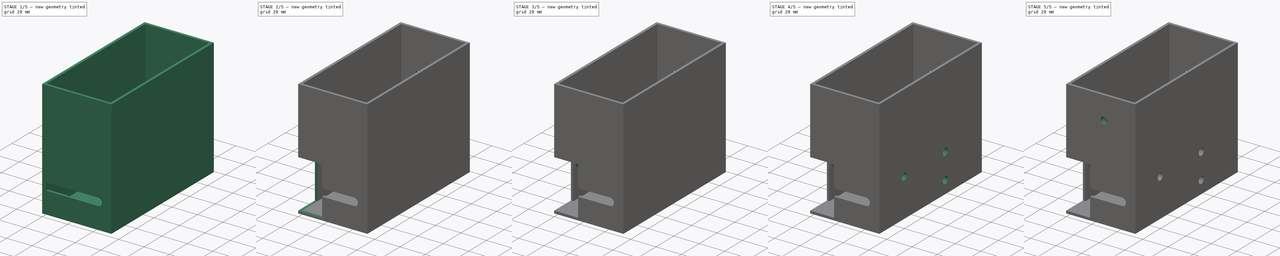
[diagram: build sequence overview — one tinted view per stage of 5, left to right]
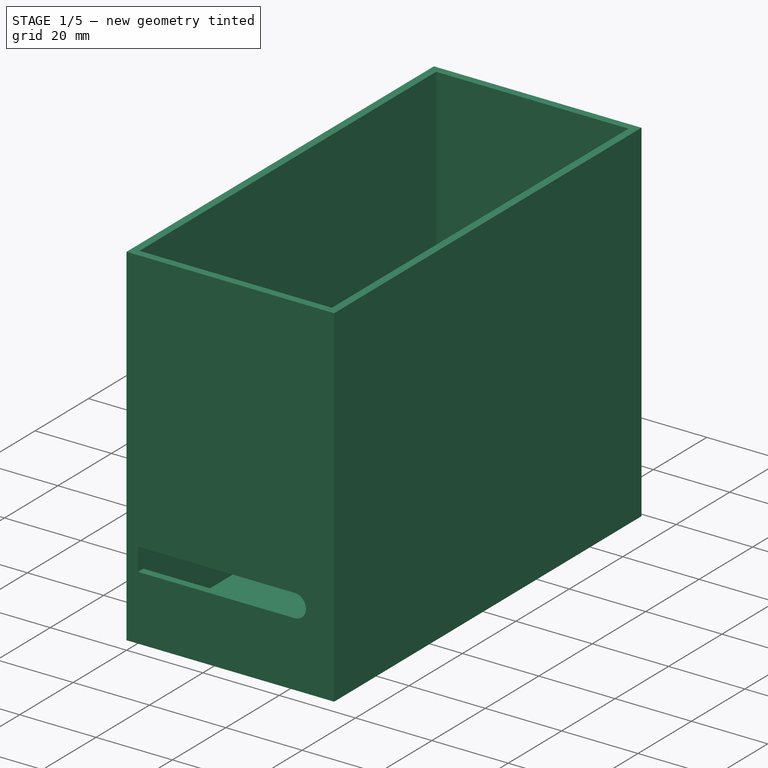
[diagram: stage 1 of 5 — iso view after this stage's code; geometry added in this stage tinted green]
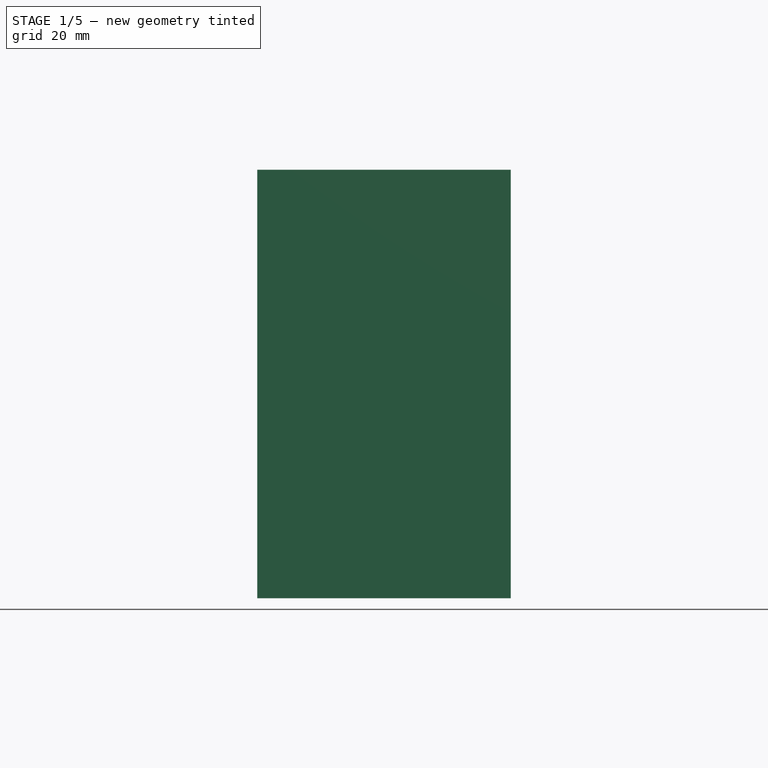
[diagram: stage 1 of 5 — front view after this stage's code; geometry added in this stage tinted green]
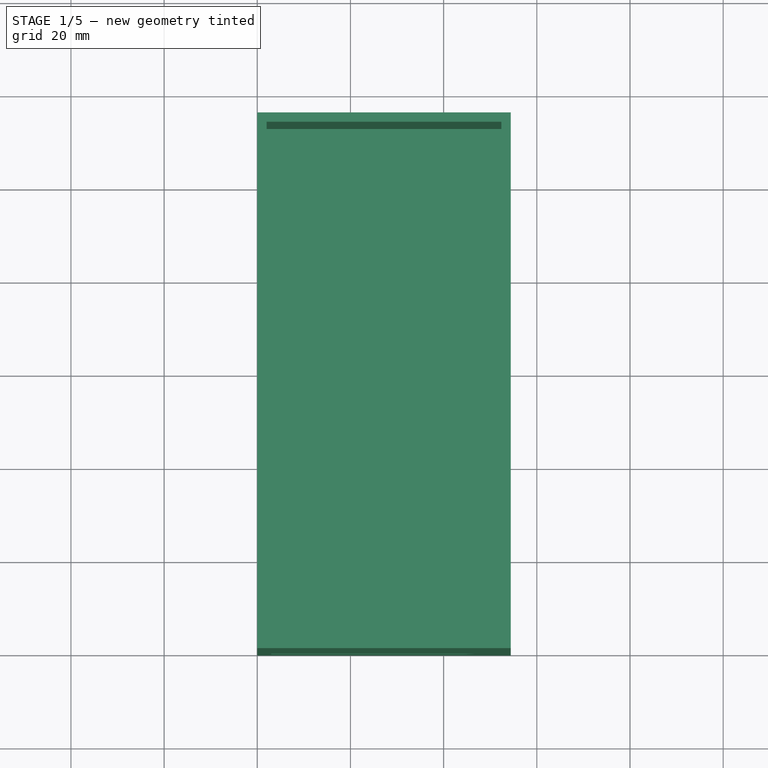
[diagram: stage 1 of 5 — top view after this stage's code; geometry added in this stage tinted green]
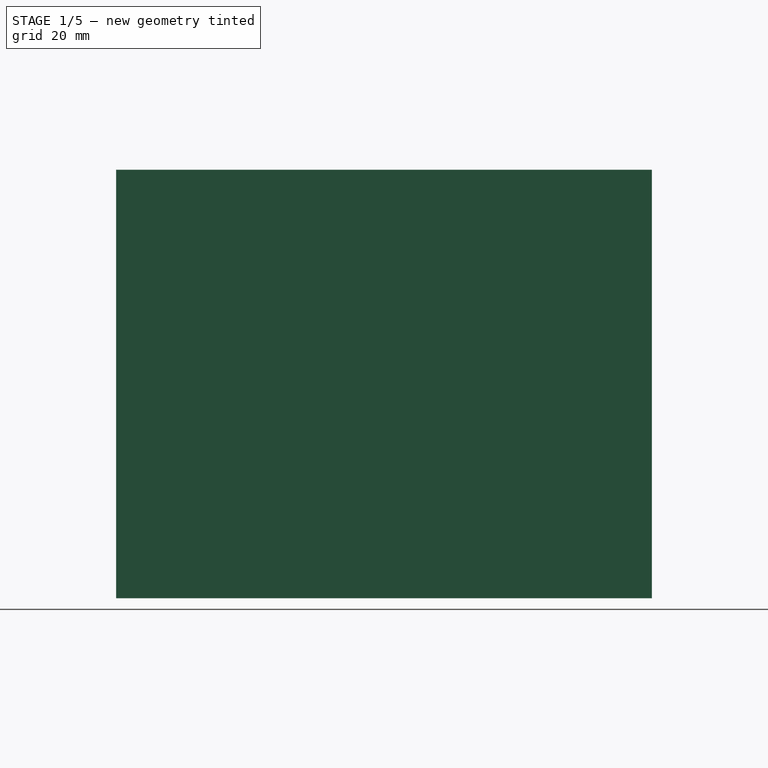
[diagram: stage 1 of 5 — right view after this stage's code; geometry added in this stage tinted green]
FCSTD DOCUMENT  (FreeCAD 0.19R24276 (Git))
Label: _Electr_PSU_Cover
License: All rights reserved
LicenseURL: http://en.wikipedia.org/wiki/All_rights_reserved
objects: Sketcher::SketchObject×14, PartDesign::Pocket×9, PartDesign::Pad×5, PartDesign::Chamfer×2, PartDesign::Body×1
note: 47 computed .brp shape members not serialized (recipe doc carries the construction recipe); baked Part::Feature solids carry a one-line shape summary decoded from their .brp

FEATURE [Sketcher::SketchObject] Sketch
  FullyConstrained = true
  MapMode = 5
  Support = -> [XY_Plane029]
  sketch-geometry (8):
    g0: LineSegment StartX=0 StartY=0 StartZ=0 EndX=54.4 EndY=0 EndZ=0
    g1: LineSegment StartX=54.4 StartY=0 StartZ=0 EndX=54.4 EndY=115 EndZ=0
    g2: LineSegment StartX=54.4 StartY=115 StartZ=0 EndX=0 EndY=115 EndZ=0
    g3: LineSegment StartX=0 StartY=115 StartZ=0 EndX=0 EndY=0 EndZ=0
    g4: LineSegment StartX=2.05 StartY=112.05 StartZ=0 EndX=52.35 EndY=112.05 EndZ=0
    g5: LineSegment StartX=52.35 StartY=112.05 StartZ=0 EndX=52.35 EndY=2.05 EndZ=0
    g6: LineSegment StartX=52.35 StartY=2.05 StartZ=0 EndX=2.05 EndY=2.05 EndZ=0
    g7: LineSegment StartX=2.05 StartY=2.05 StartZ=0 EndX=2.05 EndY=112.05 EndZ=0
  constraints (23):
    c: Coincident(g0,g1)
    c: Coincident(g1,g2)
    c: Coincident(g2,g3)
    c: Coincident(g3,g0)
    c: Horizontal(g0)
    c: Horizontal(g2)
    c: Vertical(g1)
    c: Vertical(g3)
    c: Coincident(g0,g-1)
    c: Coincident(g4,g5)
    c: Coincident(g5,g6)
    c: Coincident(g6,g7)
    c: Coincident(g7,g4)
    c: Horizontal(g4)
    c: Horizontal(g6)
    c: Vertical(g5)
    c: Vertical(g7)
    c: DistanceX(g0,g6) = 2.05
    c: DistanceY(g0,g6) = 2.05
    c: DistanceY(g7,g7) = 110
    c: DistanceX(g6,g6) = 50.3
    c: DistanceY(g1,g1) = 115
    c: DistanceX(g2,g2) = 54.4
FEATURE [PartDesign::Pad] Pad
  AllowMultiFace = false
  Direction = (1,1,1)
  Length = 92
  Length2 = 100
  Profile = -> Sketch
  Type = 0
FEATURE [Sketcher::SketchObject] Sketch001
  AttachmentOffset = pos=(0,0,92) rot=(0,0,1;0rad)
  ExternalGeometry = -> [Sketch]
  FullyConstrained = true
  MapMode = 5
  Placement = pos=(0,0,92) rot=(0,0,1;0rad)
  Support = -> [XY_Plane029]
  expr: .AttachmentOffset.Base.z = Pad.Length
  expr: Constraints[9] = Constraints[8]
  expr: Constraints[10] = Constraints[8]
  expr: Constraints[11] = Constraints[8]
  sketch-geometry (4):
    g0: LineSegment StartX=2 StartY=113 StartZ=0 EndX=52.4 EndY=113 EndZ=0
    g1: LineSegment StartX=52.4 StartY=113 StartZ=0 EndX=52.4 EndY=2 EndZ=0
    g2: LineSegment StartX=52.4 StartY=2 StartZ=0 EndX=2 EndY=2 EndZ=0
    g3: LineSegment StartX=2 StartY=2 StartZ=0 EndX=2 EndY=113 EndZ=0
  constraints (12):
    c: Coincident(g0,g1)
    c: Coincident(g1,g2)
    c: Coincident(g2,g3)
    c: Coincident(g3,g0)
    c: Horizontal(g0)
    c: Horizontal(g2)
    c: Vertical(g1)
    c: Vertical(g3)
    c: DistanceX(g-1,g2) = 2
    c: DistanceY(g-1,g2) = 2
    c: DistanceY(g0,g-3) = 2
    c: DistanceX(g0,g-3) = 2
FEATURE [PartDesign::Pocket] Pocket
  AllowMultiFace = false
  BaseFeature = -> Pad
  Length = 90
  Length2 = 100
  Profile = -> Sketch001
  Type = 0
  expr: Length = Pad.Length - 2mm
FEATURE [Sketcher::SketchObject] Sketch002
  FullyConstrained = true
  MapMode = 5
  Placement = pos=(0,0,0) rot=(1,0,0;1.5708rad)
  Support = -> [XZ_Plane029]
  sketch-geometry (5):
    g0: LineSegment StartX=3 StartY=23 StartZ=0 EndX=44 EndY=23 EndZ=0
    g1: ArcOfCircle CenterX=44 CenterY=20 CenterZ=0 NormalX=0 NormalY=0 NormalZ=1 AngleXU=0 Radius=3 StartAngle=4.71239 EndAngle=7.85398
    g2: LineSegment StartX=44 StartY=17 StartZ=0 EndX=3 EndY=17 EndZ=0
    g3: LineSegment StartX=3 StartY=17 StartZ=0 EndX=3 EndY=23 EndZ=0
    g4: LineSegment StartX=3 StartY=20 StartZ=0 EndX=44 EndY=20 EndZ=0
  constraints (14):
    c: Horizontal(g0)
    c: Tangent(g0,g1) = 1.5708
    c: Tangent(g1,g2) = 1.5708
    c: Coincident(g2,g3)
    c: Coincident(g3,g0)
    c: Vertical(g3)
    c: Horizontal(g2)
    c: PointOnObject(g4,g3)
    c: Coincident(g4,g1)
    c: Horizontal(g4)
    c: Radius(g1) = 3
    c: DistanceY(g-1,g4) = 20
    c: DistanceX(g-1,g2) = 3
    c: DistanceX(g-1,g1) = 44
FEATURE [PartDesign::Pocket] Pocket001
  AllowMultiFace = false
  BaseFeature = -> Pocket
  Length = 3
  Length2 = 100
  Profile = -> Sketch002
  Type = 0
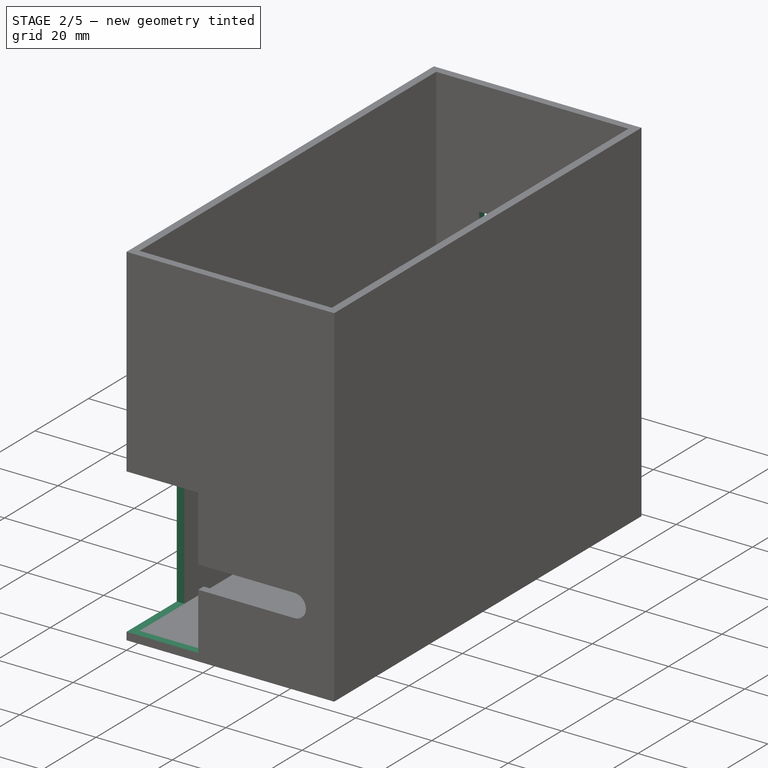
[diagram: stage 2 of 5 — iso view after this stage's code; geometry added in this stage tinted green]
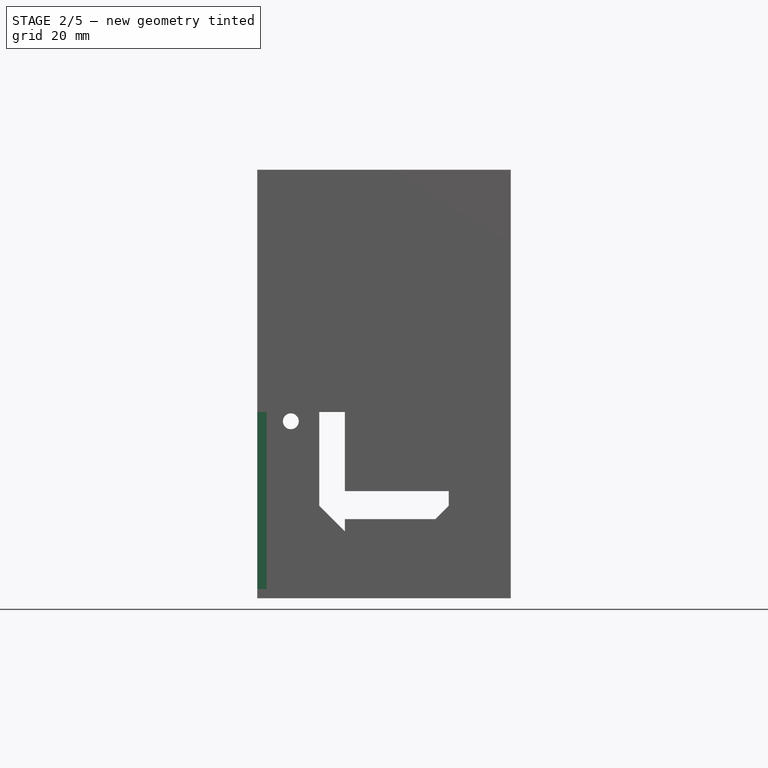
[diagram: stage 2 of 5 — front view after this stage's code; geometry added in this stage tinted green]
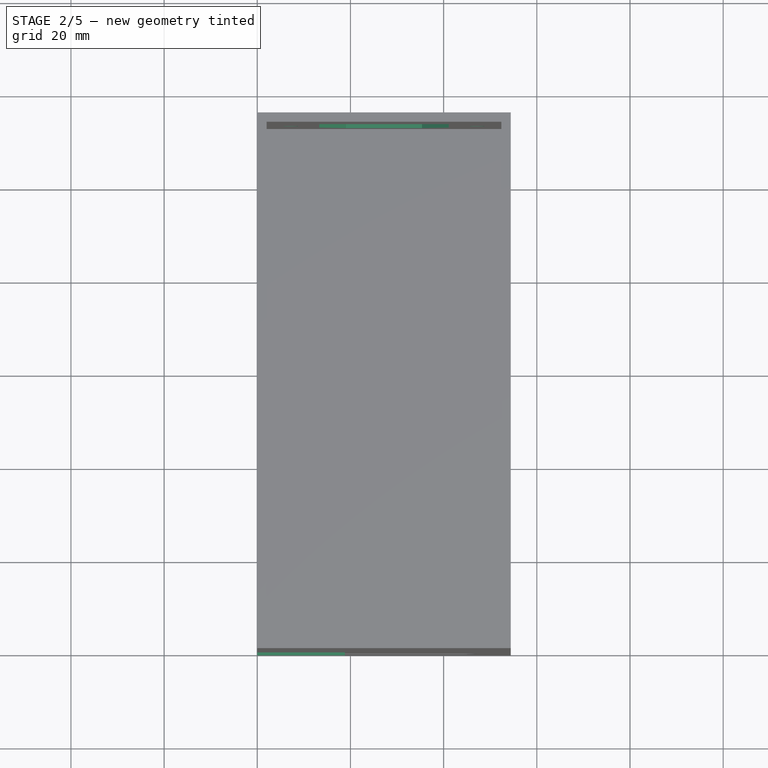
[diagram: stage 2 of 5 — top view after this stage's code; geometry added in this stage tinted green]
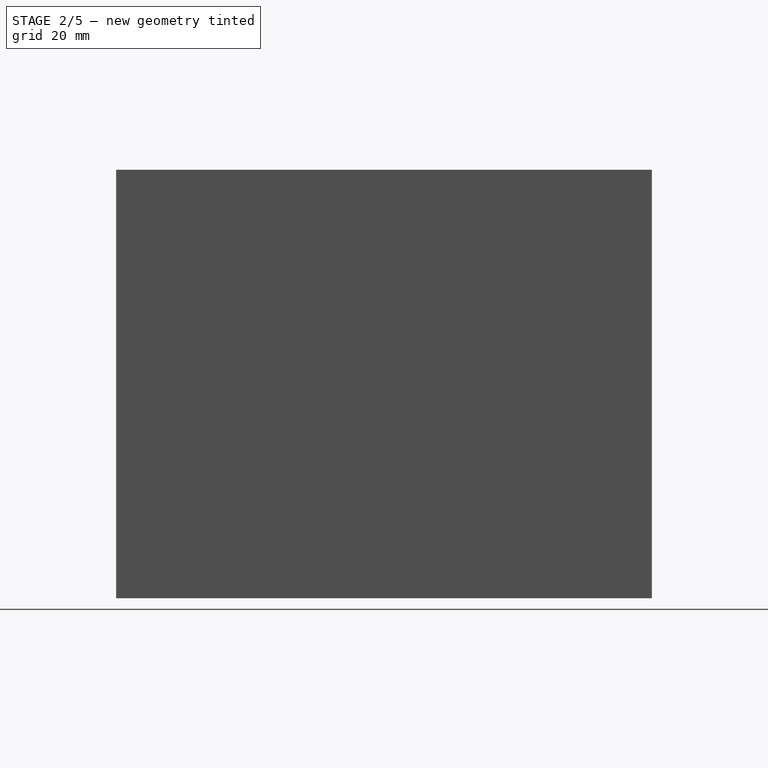
[diagram: stage 2 of 5 — right view after this stage's code; geometry added in this stage tinted green]
FEATURE [Sketcher::SketchObject] Sketch003
  AttachmentOffset = pos=(0,0,-115) rot=(0,0,1;0rad)
  FullyConstrained = true
  MapMode = 5
  Placement = pos=(0,115,2.55e-14) rot=(1,0,0;1.5708rad)
  Support = -> [XZ_Plane029]
  expr: Constraints[21] = Sketch.Constraints[22] / 2
  expr: .AttachmentOffset.Base.z = -Sketch.Constraints[21]
  sketch-geometry (11):
    g0: LineSegment StartX=13.3 StartY=61.9 StartZ=0 EndX=41.1 EndY=61.9 EndZ=0
    g1: LineSegment StartX=41.1 StartY=61.9 StartZ=0 EndX=41.1 EndY=19.85 EndZ=0
    g2: LineSegment StartX=41.1 StartY=19.85 StartZ=0 EndX=35.35 EndY=14.1 EndZ=0
    g3: LineSegment StartX=35.35 StartY=14.1 StartZ=0 EndX=19.05 EndY=14.1 EndZ=0
    g4: LineSegment StartX=19.05 StartY=14.1 StartZ=0 EndX=13.3 EndY=19.85 EndZ=0
    g5: LineSegment StartX=13.3 StartY=19.85 StartZ=0 EndX=13.3 EndY=61.9 EndZ=0
    g6: Circle CenterX=7.2 CenterY=38 CenterZ=0 NormalX=0 NormalY=0 NormalZ=1 AngleXU=0 Radius=1.7
    g7: Circle CenterX=47.2 CenterY=38 CenterZ=0 NormalX=0 NormalY=0 NormalZ=1 AngleXU=0 Radius=1.7
    g8: LineSegment StartX=7.2 StartY=38 StartZ=0 EndX=47.2 EndY=38 EndZ=0
    g9: LineSegment StartX=27.2 StartY=61.9 StartZ=0 EndX=27.2 EndY=38 EndZ=0
    g10: LineSegment StartX=27.2 StartY=38 StartZ=0 EndX=27.2 EndY=14.1 EndZ=0
  constraints (30):
    c: Horizontal(g0)
    c: Coincident(g0,g1)
    c: Vertical(g1)
    c: Coincident(g1,g2)
    c: Coincident(g2,g3)
    c: Coincident(g3,g4)
    c: Coincident(g4,g5)
    c: Coincident(g5,g0)
    c: Vertical(g5)
    c: Equal(g1,g5)
    c: Diameter(g6) = 3.4
    c: Equal(g6,g7)
    c: DistanceX(g6,g7) = 40
    c: DistanceX(g0,g0) = 27.8
    c: DistanceY(g-1,g6) = 38
    c: Coincident(g8,g6)
    c: Coincident(g8,g7)
    c: PointOnObject(g9,g8)
    c: Coincident(g10,g9)
    c: PointOnObject(g10,g3)
    c: Vertical(g10)
    c: DistanceX(g-1,g10) = 27.2
    c: DistanceY(g2,g0) = 47.8
    c: Equal(g10,g9)
    c: Perpendicular(g4,g2)
    c: PointOnObject(g9,g0)
    c: Symmetric(g0,g0,g9)
    c: Symmetric(g2,g3,g10)
    c: Symmetric(g7,g6,g9)
    c: DistanceY(g2,g1) = 5.75
FEATURE [PartDesign::Pocket] Pocket002
  AllowMultiFace = false
  BaseFeature = -> Pocket001
  Length = 3
  Length2 = 100
  Profile = -> Sketch003
  Reversed = true
  Type = 0
FEATURE [Sketcher::SketchObject] Sketch004
  AttachmentOffset = pos=(0,0,21) rot=(0,0,1;0rad)
  FullyConstrained = true
  MapMode = 5
  Placement = pos=(0,0,21) rot=(0,0,1;0rad)
  Support = -> [XY_Plane029]
  sketch-geometry (5):
    g0: LineSegment StartX=0 StartY=0 StartZ=0 EndX=18.8 EndY=0 EndZ=0
    g1: LineSegment StartX=18.8 StartY=0 StartZ=0 EndX=18.8 EndY=2.4 EndZ=0
    g2: LineSegment StartX=18.8 StartY=2.4 StartZ=0 EndX=2.4 EndY=18.8 EndZ=0
    g3: LineSegment StartX=2.4 StartY=18.8 StartZ=0 EndX=0 EndY=18.8 EndZ=0
    g4: LineSegment StartX=0 StartY=18.8 StartZ=0 EndX=0 EndY=0 EndZ=0
  constraints (14):
    c: Coincident(g-1,g0)
    c: PointOnObject(g0,g-1)
    c: Coincident(g0,g1)
    c: Vertical(g1)
    c: Coincident(g1,g2)
    c: Coincident(g2,g3)
    c: Horizontal(g3)
    c: Coincident(g3,g4)
    c: Coincident(g4,g0)
    c: Vertical(g4)
    c: Equal(g1,g3)
    c: Equal(g0,g4)
    c: DistanceX(g0,g0) = 18.8
    c: DistanceY(g1,g1) = 2.4
FEATURE [PartDesign::Pocket] Pocket003
  AllowMultiFace = false
  BaseFeature = -> Pocket002
  Length = 37.98
  Length2 = 100
  Midplane = true
  Profile = -> Sketch004
  Type = 0
FEATURE [Sketcher::SketchObject] Sketch005
  FullyConstrained = true
  MapMode = 5
  Placement = pos=(0,0,0) rot=(0.57735,0.57735,0.57735;2.0944rad)
  Support = -> [YZ_Plane029]
  sketch-geometry (13):
    g0: LineSegment StartX=106 StartY=29.7574 StartZ=0 EndX=106 EndY=19 EndZ=0
    g1: LineSegment StartX=101 StartY=14 StartZ=0 EndX=93 EndY=14 EndZ=0
    g2: LineSegment StartX=88 StartY=19 StartZ=0 EndX=88 EndY=29.7574 EndZ=0
    g3: GeomPoint X=97 Y=20 Z=0
    g4: ArcOfCircle CenterX=93 CenterY=29.7574 CenterZ=0 NormalX=0 NormalY=0 NormalZ=1 AngleXU=0 Radius=5 StartAngle=2.35619 EndAngle=3.14159
    g5: ArcOfCircle CenterX=101 CenterY=29.7574 CenterZ=0 NormalX=0 NormalY=0 NormalZ=1 AngleXU=0 Radius=5 StartAngle=0 EndAngle=0.785398
    g6: ArcOfCircle CenterX=101 CenterY=19 CenterZ=0 NormalX=0 NormalY=0 NormalZ=1 AngleXU=0 Radius=5 StartAngle=4.71239 EndAngle=6.28319
    g7: ArcOfCircle CenterX=93 CenterY=19 CenterZ=0 NormalX=0 NormalY=0 NormalZ=1 AngleXU=0 Radius=5 StartAngle=3.14159 EndAngle=4.71239
    g8: LineSegment StartX=89.4645 StartY=33.2929 StartZ=0 EndX=95.5858 EndY=39.4142 EndZ=0
    g9: LineSegment StartX=98.4142 StartY=39.4142 StartZ=0 EndX=104.536 EndY=33.2929 EndZ=0
    g10: ArcOfCircle CenterX=97 CenterY=38 CenterZ=0 NormalX=0 NormalY=0 NormalZ=1 AngleXU=0 Radius=2 StartAngle=0.785398 EndAngle=2.35619
    g11: GeomPoint X=97 Y=40 Z=0
    g12: LineSegment StartX=97 StartY=40 StartZ=0 EndX=97 EndY=0 EndZ=0
  constraints (32):
    c: Horizontal(g1)
    c: Vertical(g0)
    c: Vertical(g2)
    c: DistanceY(g-1,g3) = 20
    c: DistanceX(g-1,g3) = 97
    c: Tangent(g2,g4) = 1.5708
    c: Tangent(g0,g5) = 1.5708
    c: Tangent(g0,g6) = 1.5708
    c: Tangent(g1,g6) = 1.5708
    c: Tangent(g1,g7) = 1.5708
    c: Tangent(g2,g7) = 1.5708
    c: DistanceX(g2,g0) = 18
    c: Tangent(g4,g8) = 1.5708
    c: Coincident(g9,g5)
    c: Tangent(g5,g9)
    c: Tangent(g8,g10) = 1.5708
    c: Tangent(g9,g10) = 1.5708
    c: Equal(g7,g6)
    c: Equal(g6,g5)
    c: DistanceY(g-1,g1) = 14
    c: Radius(g6) = 5
    c: Equal(g5,g4)
    c: Radius(g10) = 2
    c: Perpendicular(g8,g9)
    c: Equal(g2,g0)
    c: PointOnObject(g11,g10)
    c: Coincident(g12,g11)
    c: PointOnObject(g12,g-1)
    c: PointOnObject(g3,g12)
    c: PointOnObject(g10,g12)
    c: DistanceY(g12,g12) = 40
    c: Symmetric(g7,g6,g12)
FEATURE [PartDesign::Pocket] Pocket004
  AllowMultiFace = false
  BaseFeature = -> Pocket003
  Length = 2.02
  Length2 = 100
  Profile = -> Sketch005
  Reversed = true
  Type = 0
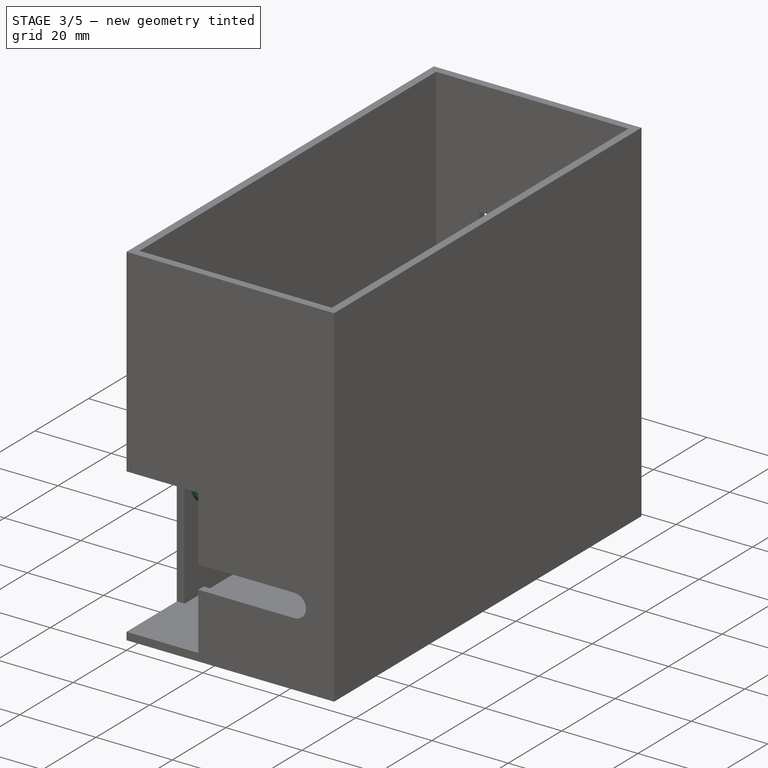
[diagram: stage 3 of 5 — iso view after this stage's code; geometry added in this stage tinted green]
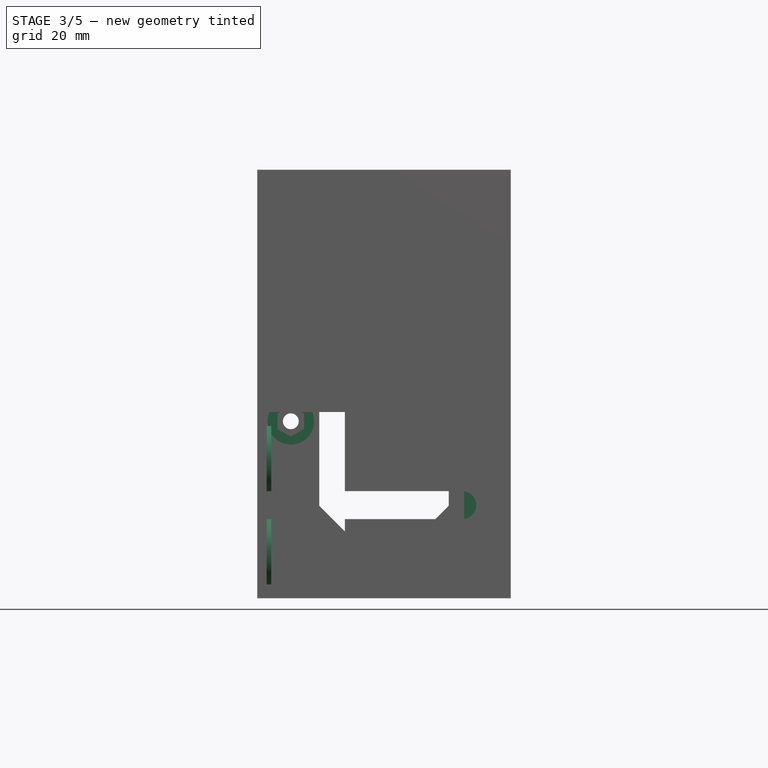
[diagram: stage 3 of 5 — front view after this stage's code; geometry added in this stage tinted green]
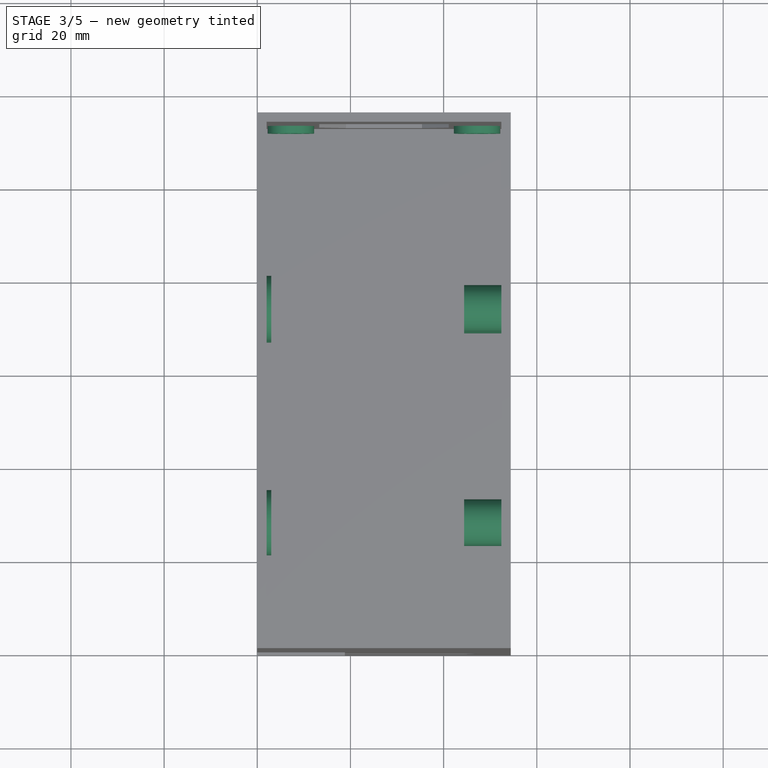
[diagram: stage 3 of 5 — top view after this stage's code; geometry added in this stage tinted green]
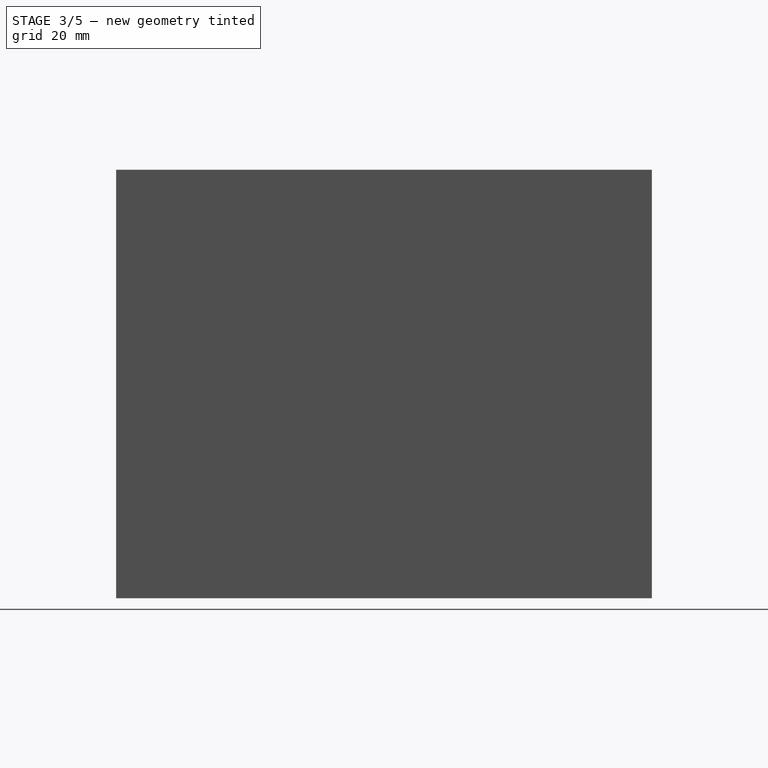
[diagram: stage 3 of 5 — right view after this stage's code; geometry added in this stage tinted green]
FEATURE [Sketcher::SketchObject] Sketch006
  AttachmentOffset = pos=(0,0,-113) rot=(0,0,1;0rad)
  ExternalGeometry = -> [Sketch003]
  FullyConstrained = true
  MapMode = 5
  Placement = pos=(0,113,2.51e-14) rot=(1,0,0;1.5708rad)
  Support = -> [XZ_Plane029]
  expr: .AttachmentOffset.Base.z = -Sketch.Constraints[21] + 2mm
  sketch-geometry (4):
    g0: Circle CenterX=7.2 CenterY=38 CenterZ=0 NormalX=0 NormalY=0 NormalZ=1 AngleXU=0 Radius=5
    g1: Circle CenterX=47.2 CenterY=38 CenterZ=0 NormalX=0 NormalY=0 NormalZ=1 AngleXU=0 Radius=5
    g2: Circle CenterX=7.2 CenterY=38 CenterZ=0 NormalX=0 NormalY=0 NormalZ=1 AngleXU=0 Radius=1.7
    g3: Circle CenterX=47.2 CenterY=38 CenterZ=0 NormalX=0 NormalY=0 NormalZ=1 AngleXU=0 Radius=1.7
  constraints (8):
    c: Coincident(g0,g-3)
    c: Coincident(g1,g-4)
    c: Equal(g0,g1)
    c: Diameter(g0) = 10
    c: Coincident(g2,g0)
    c: Coincident(g3,g1)
    c: Equal(g2,g-3)
    c: Equal(g3,g-4)
FEATURE [PartDesign::Pad] Pad001
  AllowMultiFace = false
  BaseFeature = -> Pocket004
  Direction = (1,1,1)
  Length = 1.6
  Length2 = 100
  Profile = -> Sketch006
  Type = 0
FEATURE [Sketcher::SketchObject] Sketch007
  AttachmentOffset = pos=(0,0,-111.4) rot=(0,0,1;0rad)
  ExternalGeometry = -> [Sketch003]
  FullyConstrained = true
  MapMode = 5
  Placement = pos=(0,111.4,2.47e-14) rot=(1,0,0;1.5708rad)
  Support = -> [XZ_Plane029]
  expr: .AttachmentOffset.Base.z = -Sketch.Constraints[21] + 2mm + Pad001.Length
  sketch-geometry (14):
    g0: LineSegment StartX=7.2 StartY=41.2909 StartZ=0 EndX=4.35 EndY=39.6454 EndZ=0
    g1: LineSegment StartX=4.35 StartY=39.6454 StartZ=0 EndX=4.35 EndY=36.3546 EndZ=0
    g2: LineSegment StartX=4.35 StartY=36.3546 StartZ=0 EndX=7.2 EndY=34.7091 EndZ=0
    g3: LineSegment StartX=7.2 StartY=34.7091 StartZ=0 EndX=10.05 EndY=36.3546 EndZ=0
    g4: LineSegment StartX=10.05 StartY=36.3546 StartZ=0 EndX=10.05 EndY=39.6454 EndZ=0
    g5: LineSegment StartX=10.05 StartY=39.6454 StartZ=0 EndX=7.2 EndY=41.2909 EndZ=0
    g6: Circle CenterX=7.2 CenterY=38 CenterZ=0 NormalX=0 NormalY=0 NormalZ=1 AngleXU=0 Radius=3.2909
    g7: LineSegment StartX=47.2 StartY=41.2909 StartZ=0 EndX=44.35 EndY=39.6454 EndZ=0
    g8: LineSegment StartX=44.35 StartY=39.6454 StartZ=0 EndX=44.35 EndY=36.3546 EndZ=0
    g9: LineSegment StartX=44.35 StartY=36.3546 StartZ=0 EndX=47.2 EndY=34.7091 EndZ=0
    g10: LineSegment StartX=47.2 StartY=34.7091 StartZ=0 EndX=50.05 EndY=36.3546 EndZ=0
    g11: LineSegment StartX=50.05 StartY=36.3546 StartZ=0 EndX=50.05 EndY=39.6454 EndZ=0
    g12: LineSegment StartX=50.05 StartY=39.6454 StartZ=0 EndX=47.2 EndY=41.2909 EndZ=0
    g13: Circle CenterX=47.2 CenterY=38 CenterZ=0 NormalX=0 NormalY=0 NormalZ=1 AngleXU=0 Radius=3.2909
  constraints (32):
    c: Coincident(g0,g1)
    c: Coincident(g1,g2)
    c: Coincident(g2,g3)
    c: Coincident(g3,g4)
    c: Coincident(g4,g5)
    c: Coincident(g5,g0)
    c: Equal(g0, g1-g5) x5
    c: PointOnObject(g0,g6)
    c: PointOnObject(g1,g6)
    c: PointOnObject(g2,g6)
    c: PointOnObject(g3,g6)
    c: PointOnObject(g4,g6)
    c: PointOnObject(g5,g6)
    c: Coincident(g6,g-3)
    c: Coincident(g7,g8)
    c: Coincident(g8,g9)
    c: Coincident(g9,g10)
    c: Coincident(g10,g11)
    c: Coincident(g11,g12)
    c: Coincident(g12,g7)
    c: Equal(g7, g8-g12) x5
    c: PointOnObject(g7,g13)
    c: PointOnObject(g8,g13)
    c: PointOnObject(g9,g13)
    c: PointOnObject(g10,g13)
    c: PointOnObject(g11,g13)
    c: PointOnObject(g12,g13)
    c: Coincident(g13,g-4)
    c: Vertical(g4)
    c: Vertical(g8)
    c: DistanceX(g0,g4) = 5.7
    c: Equal(g6,g13)
FEATURE [PartDesign::Pocket] Pocket005
  AllowMultiFace = false
  BaseFeature = -> Pad001
  Length = 1.8
  Length2 = 100
  Profile = -> Sketch007
  Type = 0
FEATURE [Sketcher::SketchObject] Sketch008
  AttachmentOffset = pos=(0,0,2) rot=(0,0,1;0rad)
  FullyConstrained = true
  MapMode = 5
  Placement = pos=(2,-4e-16,4e-16) rot=(0.57735,0.57735,0.57735;2.0944rad)
  Support = -> [YZ_Plane029]
  sketch-geometry (4):
    g0: LineSegment StartX=28 StartY=30 StartZ=0 EndX=74 EndY=30 EndZ=0
    g1: Circle CenterX=28 CenterY=30 CenterZ=0 NormalX=0 NormalY=0 NormalZ=1 AngleXU=0 Radius=7
    g2: Circle CenterX=74 CenterY=30 CenterZ=0 NormalX=0 NormalY=0 NormalZ=1 AngleXU=0 Radius=7
    g3: Circle CenterX=74 CenterY=10 CenterZ=0 NormalX=0 NormalY=0 NormalZ=1 AngleXU=0 Radius=7
  constraints (11):
    c: Horizontal(g0)
    c: DistanceY(g-1,g0) = 30
    c: DistanceX(g0,g0) = 46
    c: DistanceX(g-1,g0) = 28
    c: Coincident(g1,g0)
    c: Coincident(g2,g0)
    c: Equal(g1,g2)
    c: Diameter(g1) = 14
    c: DistanceY(g3,g2) = 20
    c: Vertical(g3,g2)
    c: Equal(g2,g3)
FEATURE [PartDesign::Pad] Pad002
  AllowMultiFace = false
  BaseFeature = -> Pocket005
  Direction = (1,1,1)
  Length = 1
  Length2 = 100
  Profile = -> Sketch008
  Type = 0
FEATURE [Sketcher::SketchObject] Sketch009
  AttachmentOffset = pos=(0,0,52.4) rot=(0,0,1;0rad)
  ExternalGeometry = -> [Sketch008]
  FullyConstrained = true
  MapMode = 5
  Placement = pos=(52.4,-1.16e-14,1.16e-14) rot=(0.57735,0.57735,0.57735;2.0944rad)
  Support = -> [YZ_Plane029]
  expr: .AttachmentOffset.Base.z = Sketch.Constraints[22] - 2mm
  sketch-geometry (26):
    g0: LineSegment StartX=28 StartY=30 StartZ=0 EndX=28 EndY=15.9289 EndZ=0
    g1: LineSegment StartX=74 StartY=30 StartZ=0 EndX=74 EndY=10 EndZ=0
    g2: LineSegment StartX=31.5355 StartY=26.4645 StartZ=0 EndX=29 EndY=23.9289 EndZ=0
    g3: LineSegment StartX=29 StartY=23.9289 StartZ=0 EndX=29 EndY=15.9289 EndZ=0
    g4: LineSegment StartX=29 StartY=15.9289 StartZ=0 EndX=27 EndY=15.9289 EndZ=0
    g5: LineSegment StartX=27 StartY=15.9289 StartZ=0 EndX=27 EndY=23.9289 EndZ=0
    g6: LineSegment StartX=27 StartY=23.9289 StartZ=0 EndX=24.4645 EndY=26.4645 EndZ=0
    g7: LineSegment StartX=77.5355 StartY=26.4645 StartZ=0 EndX=75 EndY=23.9289 EndZ=0
    g8: LineSegment StartX=75 StartY=23.9289 StartZ=0 EndX=75 EndY=16.0711 EndZ=0
    g9: LineSegment StartX=73 StartY=16.0711 StartZ=0 EndX=73 EndY=23.9289 EndZ=0
    g10: LineSegment StartX=73 StartY=23.9289 StartZ=0 EndX=70.4645 EndY=26.4645 EndZ=0
    g11: ArcOfCircle CenterX=28 CenterY=30 CenterZ=0 NormalX=0 NormalY=0 NormalZ=1 AngleXU=0 Radius=5 StartAngle=5.49779 EndAngle=10.2102
    g12: ArcOfCircle CenterX=74 CenterY=30 CenterZ=0 NormalX=0 NormalY=0 NormalZ=1 AngleXU=0 Radius=5 StartAngle=5.49779 EndAngle=10.2102
    g13: LineSegment StartX=24.4645 StartY=26.4645 StartZ=0 EndX=31.5355 EndY=26.4645 EndZ=0
    g14: LineSegment StartX=70.4645 StartY=26.4645 StartZ=0 EndX=77.5355 EndY=26.4645 EndZ=0
    g15: ArcOfCircle CenterX=74 CenterY=10 CenterZ=0 NormalX=0 NormalY=0 NormalZ=1 AngleXU=0 Radius=5 StartAngle=2.3562 EndAngle=3.92699
    g16: ArcOfCircle CenterX=74 CenterY=10 CenterZ=0 NormalX=0 NormalY=0 NormalZ=1 AngleXU=0 Radius=5 StartAngle=5.49778 EndAngle=7.06859
    g17: LineSegment StartX=70.4645 StartY=6.46448 StartZ=0 EndX=73 EndY=3.92893 EndZ=0
    g18: LineSegment StartX=77.5355 StartY=6.46445 StartZ=0 EndX=75 EndY=3.92893 EndZ=0
    g19: LineSegment StartX=70.4645 StartY=13.5355 StartZ=0 EndX=73 EndY=16.0711 EndZ=0
    g20: LineSegment StartX=77.5355 StartY=13.5355 StartZ=0 EndX=75 EndY=16.0711 EndZ=0
    g21: LineSegment StartX=73 StartY=16.0711 StartZ=0 EndX=75 EndY=16.0711 EndZ=0
    g22: LineSegment StartX=73 StartY=3.92893 StartZ=0 EndX=75 EndY=3.92893 EndZ=0
    g23: LineSegment StartX=73 StartY=3.92893 StartZ=0 EndX=73 EndY=1 EndZ=0
    g24: LineSegment StartX=73 StartY=1 StartZ=0 EndX=75 EndY=1 EndZ=0
    g25: LineSegment StartX=75 StartY=1 StartZ=0 EndX=75 EndY=3.92893 EndZ=0
  constraints (71):
    c: Vertical(g0)
    c: Coincident(g2,g3)
    c: Vertical(g3)
    c: Coincident(g3,g4)
    c: Coincident(g4,g5)
    c: Vertical(g5)
    c: Coincident(g5,g6)
    c: Coincident(g7,g8)
    c: Vertical(g8)
    c: Coincident(g9,g10)
    c: Vertical(g9)
    c: PointOnObject(g0,g4)
    c: Coincident(g11,g0)
    c: Coincident(g11,g6)
    c: Coincident(g11,g2)
    c: Coincident(g12,g1)
    c: Coincident(g12,g10)
    c: Coincident(g12,g7)
    c: Coincident(g13,g6)
    c: Coincident(g13,g2)
    c: Coincident(g14,g10)
    c: Coincident(g14,g7)
    c: Symmetric(g4,g3,g0)
    c: Symmetric(g9,g8,g1)
    c: Equal(g5,g3)
    c: Equal(g9,g8)
    c: Equal(g13,g14)
    c: Perpendicular(g6,g2)
    c: Diameter(g11) = 10
    c: Coincident(g-3,g11)
    c: Equal(g11,g12)
    c: Coincident(g12,g-4)
    c: DistanceX(g4,g4) = 2
    c: DistanceY(g5,g5) = 8
    c: Coincident(g15,g-5)
    c: Coincident(g16,g15)
    c: Coincident(g17,g15)
    c: Coincident(g18,g16)
    c: Coincident(g19,g15)
    c: Coincident(g20,g16)
    c: Coincident(g19,g9)
    c: Coincident(g20,g8)
    c: Coincident(g15,g1)
    c: Tangent(g20,g16)
    c: Tangent(g16,g18)
    c: Tangent(g17,g15)
    c: Tangent(g15,g19)
    c: Equal(g12,g16)
    c: Equal(g16,g15)
    c: Horizontal(g14)
    c: Horizontal(g13)
    c: Tangent(g2,g11)
    c: Coincident(g21,g9)
    c: Coincident(g21,g8)
    c: Equal(g4,g21)
    c: Perpendicular(g7,g10)
    c: Perpendicular(g19,g20)
    c: Coincident(g22,g17)
    c: Coincident(g22,g18)
    c: Horizontal(g22)
    c: Equal(g21,g22)
    c: Equal(g18,g17)
    c: Coincident(g17,g23)
    c: Vertical(g23)
    c: Coincident(g23,g24)
    c: Horizontal(g24)
    c: Coincident(g24,g25)
    c: Coincident(g25,g18)
    c: Vertical(g25)
    c: DistanceY(g-1,g24) = 1
    c: Perpendicular(g17,g18)
FEATURE [PartDesign::Pad] Pad003
  AllowMultiFace = false
  BaseFeature = -> Pad002
  Direction = (1,1,1)
  Length = 8
  Length2 = 100
  Profile = -> Sketch009
  Reversed = true
  Type = 0
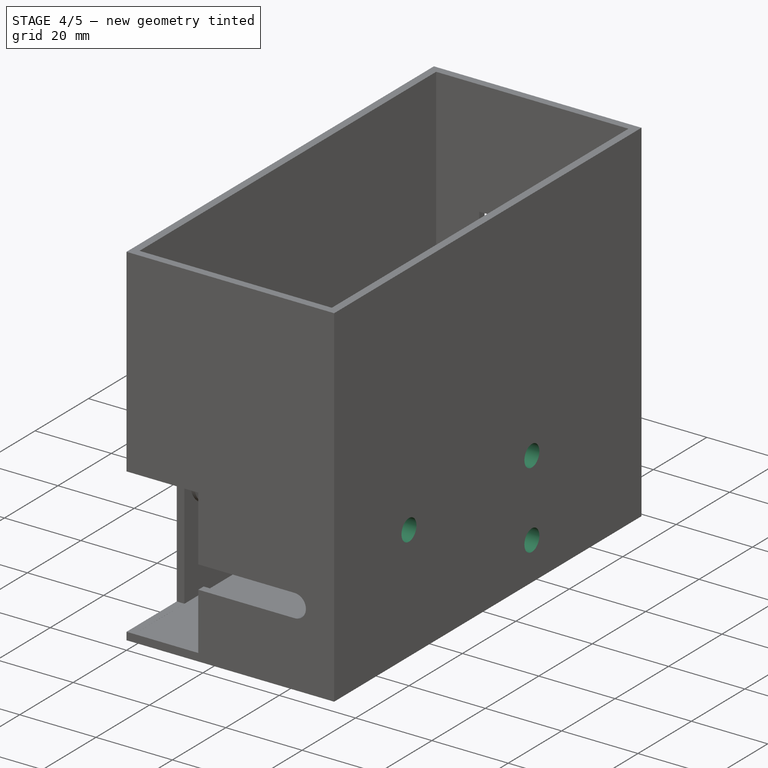
[diagram: stage 4 of 5 — iso view after this stage's code; geometry added in this stage tinted green]
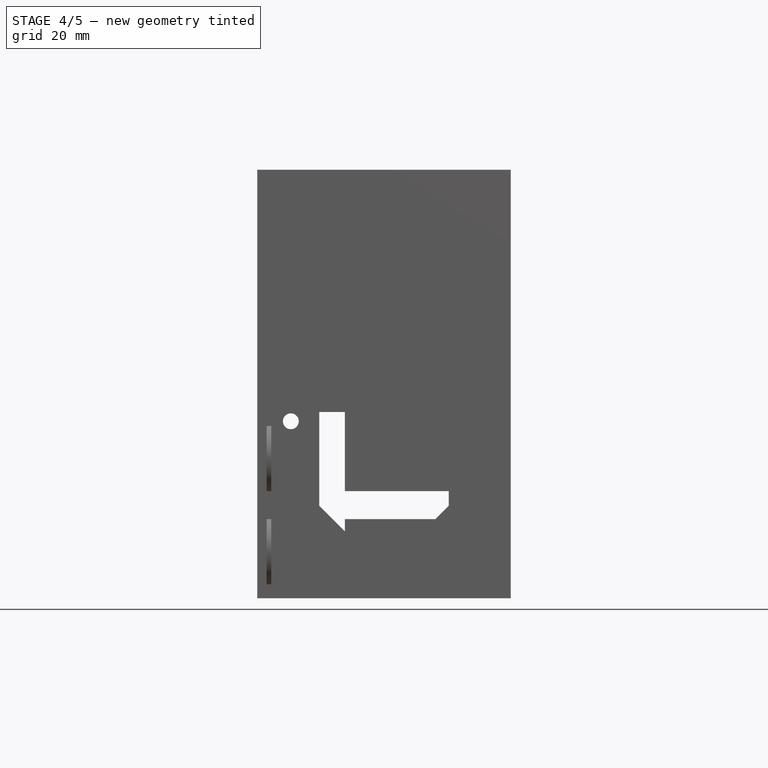
[diagram: stage 4 of 5 — front view after this stage's code; geometry added in this stage tinted green]
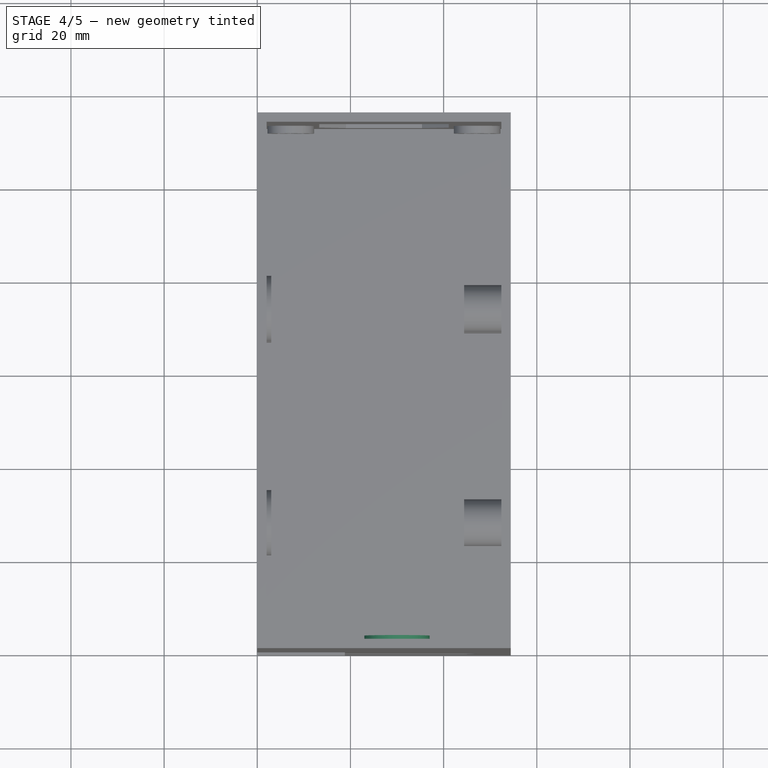
[diagram: stage 4 of 5 — top view after this stage's code; geometry added in this stage tinted green]
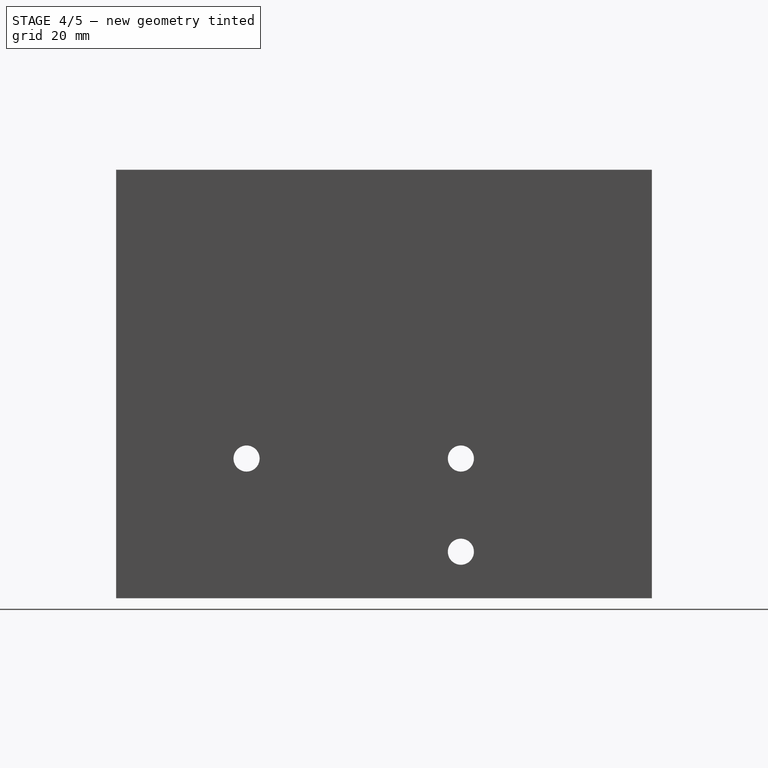
[diagram: stage 4 of 5 — right view after this stage's code; geometry added in this stage tinted green]
FEATURE [Sketcher::SketchObject] Sketch010
  AttachmentOffset = pos=(0,0,-28) rot=(0,0,1;0rad)
  ExternalGeometry = -> [Sketch009]
  FullyConstrained = true
  MapMode = 5
  Placement = pos=(0,28,6.2e-15) rot=(1,0,0;1.5708rad)
  Support = -> [XZ_Plane029]
  expr: Constraints[5] = Pad003.Length
  sketch-geometry (3):
    g0: LineSegment StartX=44.4 StartY=23.9289 StartZ=0 EndX=52.4 EndY=15.9289 EndZ=0
    g1: LineSegment StartX=44.4 StartY=23.9289 StartZ=0 EndX=44.4 EndY=15.9289 EndZ=0
    g2: LineSegment StartX=44.4 StartY=15.9289 StartZ=0 EndX=52.4 EndY=15.9289 EndZ=0
  constraints (8):
    c: Coincident(g0,g1)
    c: Vertical(g1)
    c: Coincident(g1,g2)
    c: Coincident(g2,g0)
    c: Horizontal(g2)
    c: DistanceX(g2,g2) = 8
    c: Horizontal(g-3,g0)
    c: Coincident(g0,g-4)
FEATURE [PartDesign::Pocket] Pocket006
  AllowMultiFace = false
  BaseFeature = -> Pad003
  Length = 3
  Length2 = 100
  Midplane = true
  Profile = -> Sketch010
  Reversed = true
  Type = 0
FEATURE [Sketcher::SketchObject] Sketch011
  ExternalGeometry = -> [Sketch008]
  FullyConstrained = true
  MapMode = 5
  Placement = pos=(0,0,0) rot=(0.57735,0.57735,0.57735;2.0944rad)
  Support = -> [YZ_Plane029]
  sketch-geometry (3):
    g0: Circle CenterX=28 CenterY=30 CenterZ=0 NormalX=0 NormalY=0 NormalZ=1 AngleXU=0 Radius=2.8
    g1: Circle CenterX=74 CenterY=30 CenterZ=0 NormalX=0 NormalY=0 NormalZ=1 AngleXU=0 Radius=2.8
    g2: Circle CenterX=74 CenterY=10 CenterZ=0 NormalX=0 NormalY=0 NormalZ=1 AngleXU=0 Radius=2.8
  constraints (6):
    c: Diameter(g0) = 5.6
    c: Equal(g0,g1)
    c: Equal(g1,g2)
    c: Coincident(g-3,g0)
    c: Coincident(g-4,g1)
    c: Coincident(g-5,g2)
FEATURE [PartDesign::Pocket] Pocket007
  AllowMultiFace = false
  BaseFeature = -> Pocket006
  Length = 5
  Length2 = 100
  Profile = -> Sketch011
  Reversed = true
  Type = 1
FEATURE [Sketcher::SketchObject] Sketch012
  AttachmentOffset = pos=(0,0,-2) rot=(0,0,1;0rad)
  FullyConstrained = true
  MapMode = 5
  Placement = pos=(0,2,4e-16) rot=(1,0,0;1.5708rad)
  Support = -> [XZ_Plane029]
  sketch-geometry (1):
    g0: Circle CenterX=30 CenterY=74 CenterZ=0 NormalX=0 NormalY=0 NormalZ=1 AngleXU=0 Radius=7
  constraints (3):
    c: Diameter(g0) = 14
    c: DistanceX(g-1,g0) = 30
    c: DistanceY(g-1,g0) = 74
FEATURE [PartDesign::Pad] Pad004
  AllowMultiFace = false
  BaseFeature = -> Pocket007
  Direction = (1,1,1)
  Length = 1
  Length2 = 100
  Profile = -> Sketch012
  Reversed = true
  Type = 0
  expr: Length = Pad002.Length
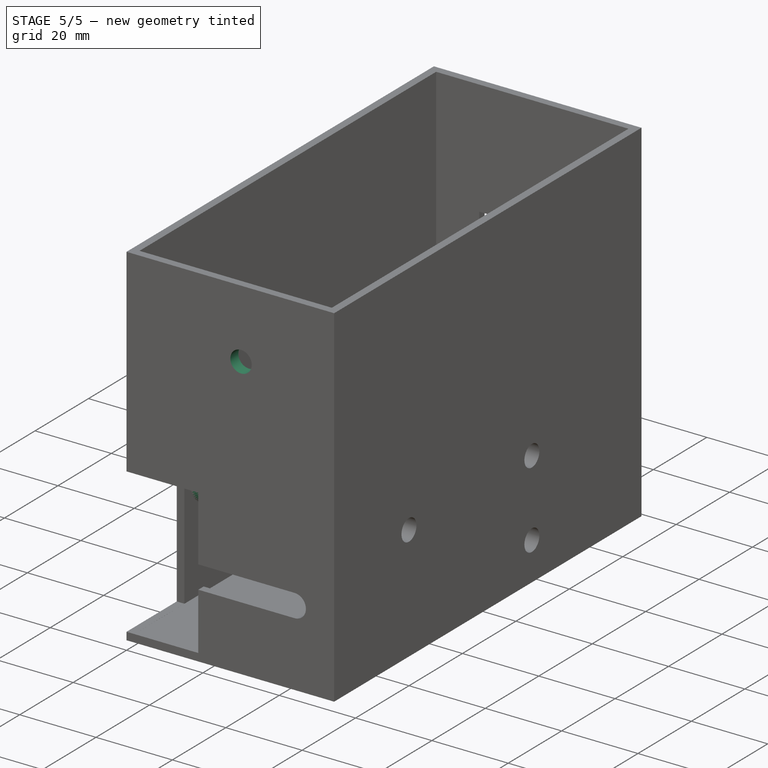
[diagram: stage 5 of 5 — iso view after this stage's code; geometry added in this stage tinted green]
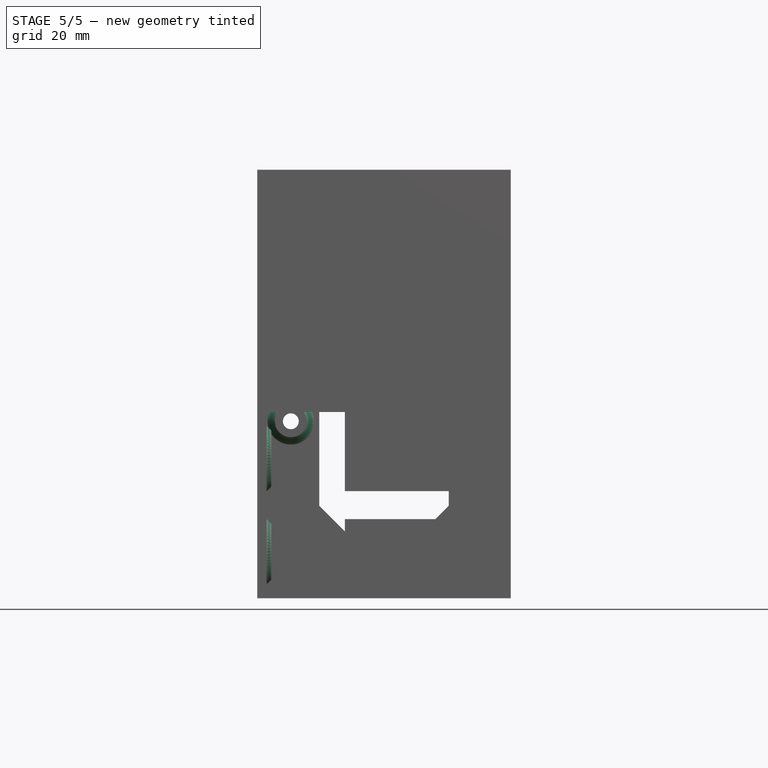
[diagram: stage 5 of 5 — front view after this stage's code; geometry added in this stage tinted green]
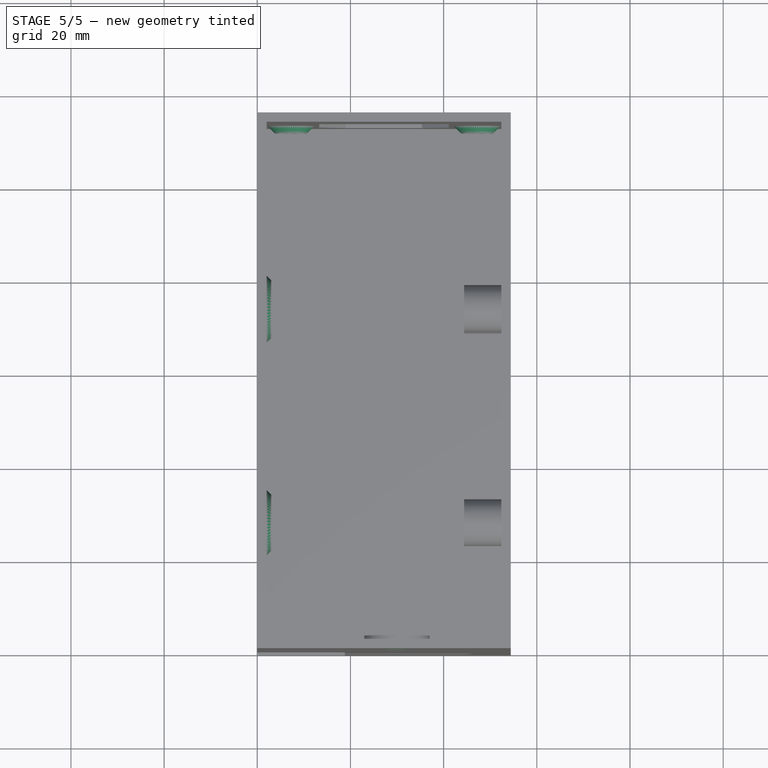
[diagram: stage 5 of 5 — top view after this stage's code; geometry added in this stage tinted green]
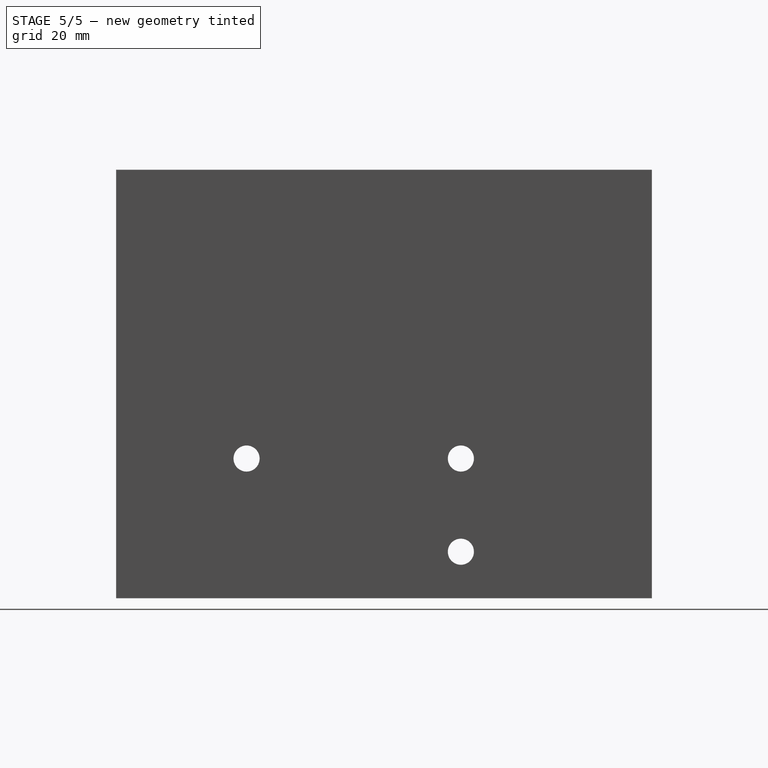
[diagram: stage 5 of 5 — right view after this stage's code; geometry added in this stage tinted green]
FEATURE [Sketcher::SketchObject] Sketch013
  FullyConstrained = true
  MapMode = 5
  Placement = pos=(0,0,0) rot=(1,0,0;1.5708rad)
  Support = -> [XZ_Plane029]
  sketch-geometry (1):
    g0: Circle CenterX=30 CenterY=74 CenterZ=0 NormalX=0 NormalY=0 NormalZ=1 AngleXU=0 Radius=2.8
  constraints (3):
    c: Diameter(g0) = 5.6
    c: DistanceX(g-1,g0) = 30
    c: DistanceY(g-1,g0) = 74
FEATURE [PartDesign::Pocket] Pocket008
  AllowMultiFace = false
  BaseFeature = -> Pad004
  Length = 4
  Length2 = 100
  Profile = -> Sketch013
  Type = 0
FEATURE [PartDesign::Chamfer] Chamfer
  Angle = 45
  Base = -> Pocket008 [Edge160,Edge159,Edge161]
  BaseFeature = -> Pocket008
  ChamferType = 0
  FlipDirection = false
  Refine = true
  Size = 0.98
  Size2 = 1
  SupportTransform = false
FEATURE [PartDesign::Chamfer] Chamfer001
  Angle = 45
  Base = -> Chamfer [Edge168,Edge170]
  BaseFeature = -> Chamfer
  ChamferType = 0
  FlipDirection = false
  Refine = true
  Size = 1.58
  Size2 = 1
  SupportTransform = false
FEATURE [PartDesign::Body] Body  label="PSU_Cover"
  Group = -> [Sketch,Pad,Sketch001,Pocket,Sketch002,Pocket001,Sketch003,Pocket002,Sketch004,Pocket003,Sketch005,Pocket004,Sketch006,Pad001,Sketch007,Pocket005,Sketch008,Pad002,Sketch009,Pad003,Sketch010,Pocket006,Sketch011,Pocket007,Sketch012,Pad004,Sketch013,Pocket008,Chamfer,Chamfer001]
  Origin = -> Origin029
  Tip = -> Chamfer001
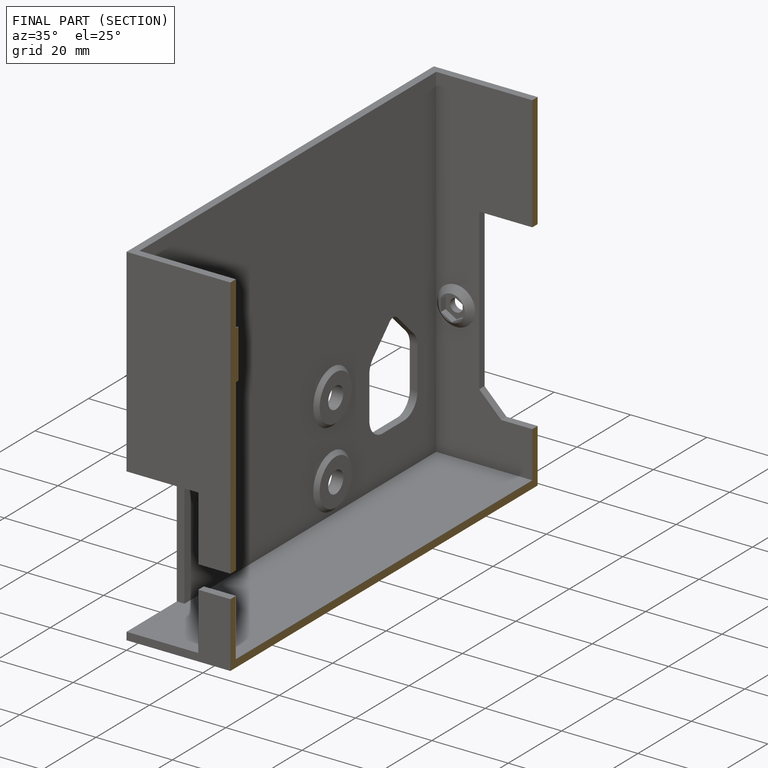
[diagram: finished part — half-section view (interior)]
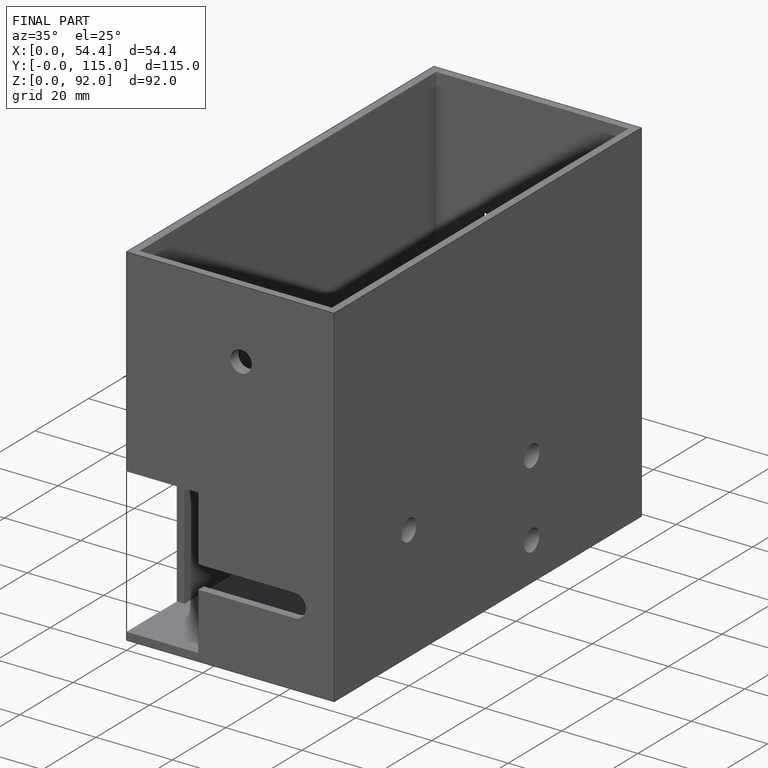
[diagram: finished part — iso view with bounding-box wireframe]
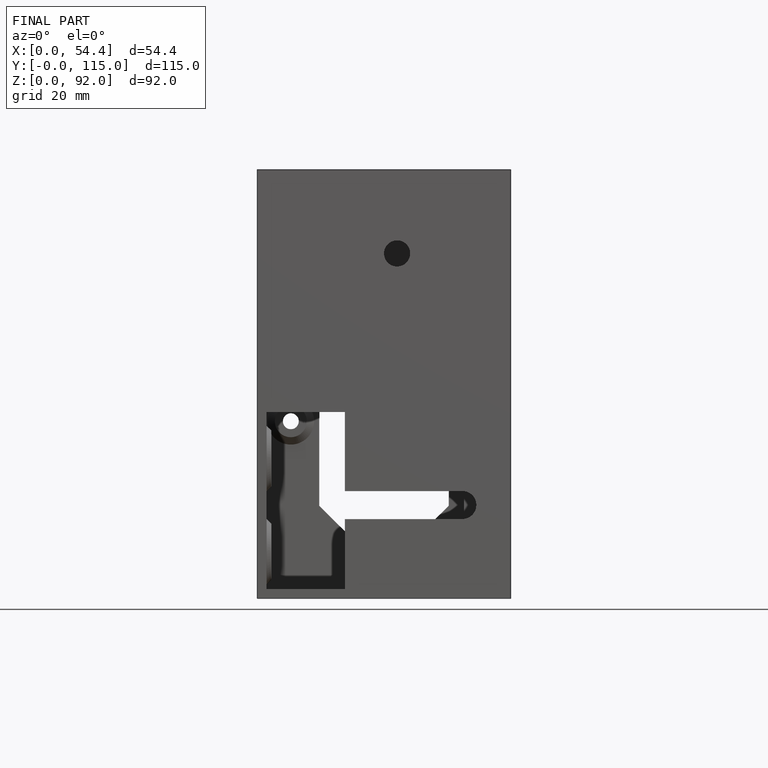
[diagram: finished part — front view with bounding-box wireframe]
